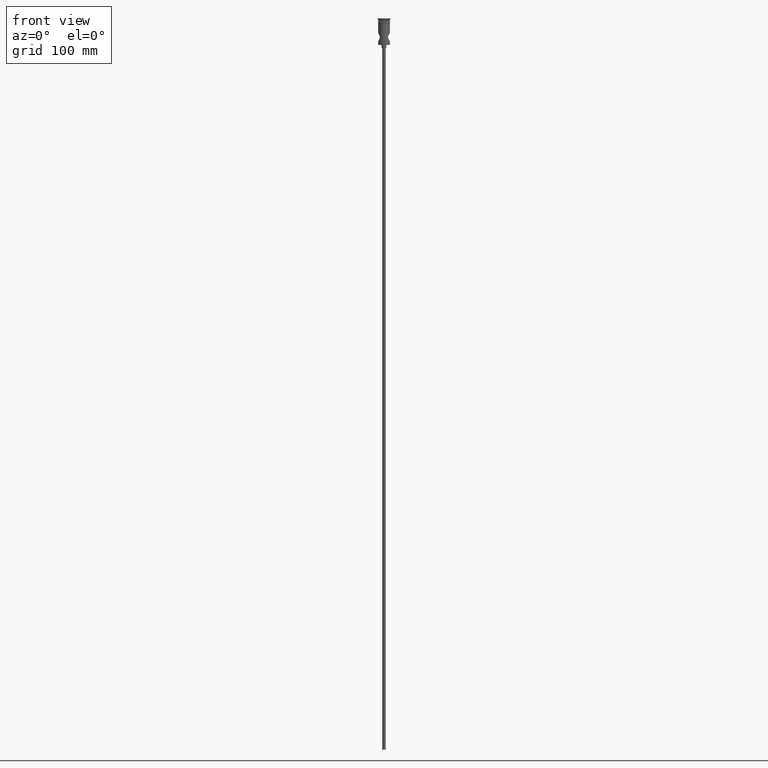
[diagram: clean part render]
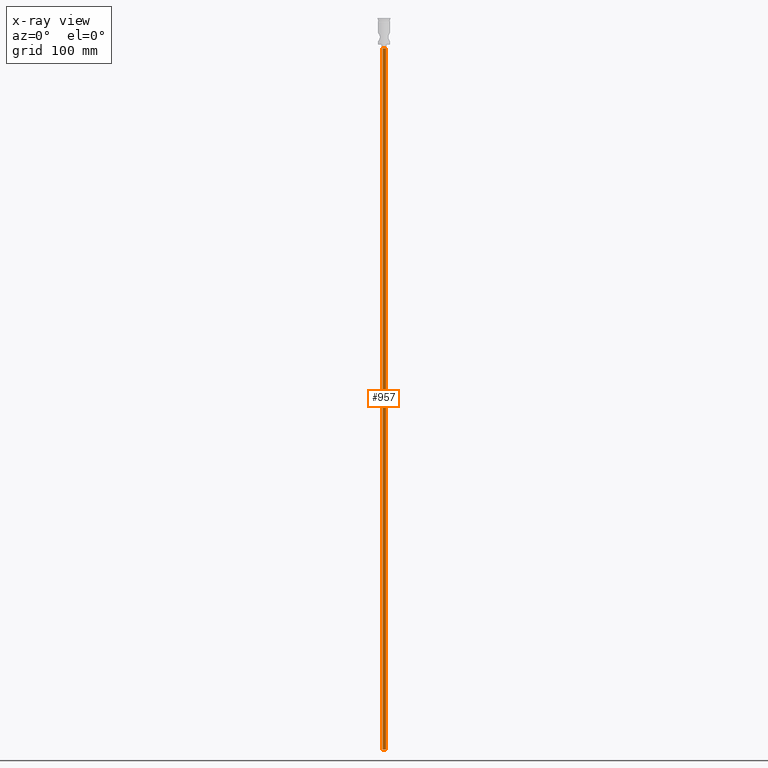
[diagram: x-ray — body ghosted, one internal face saturated and labeled with its STEP entity id]
A machine part, front view, then the same camera in x-ray: the body is ghosted and one INTERNAL B-rep face — a face not visible from any outside direction — is saturated and labeled: STEP entity #957.
In plain terms, the highlighted cylindrical surface (edge-blend (fillet) strip) has radius 1.5 mm, axis along (-0, -0, 1).
Its self-contained STEP definition (entity closure, byte-faithful):
#39 = DIRECTION ( 'NONE',  ( -0.000000000000000000, -0.000000000000000000, 1.000000000000000000 ) ) ;
#44 = EDGE_CURVE ( 'NONE', #409, #531, #180, .T. ) ;
#64 = EDGE_CURVE ( 'NONE', #853, #531, #799, .T. ) ;
#80 = LINE ( 'NONE', #1180, #1028 ) ;
#97 = EDGE_LOOP ( 'NONE', ( #611, #1345, #604, #1356 ) ) ;
#167 = DIRECTION ( 'NONE',  ( -0.000000000000000000, -0.000000000000000000, 1.000000000000000000 ) ) ;
#180 = CIRCLE ( 'NONE', #283, 1.500000000000000222 ) ;
#237 = CARTESIAN_POINT ( 'NONE',  ( 0.000000000000000000, 0.000000000000000000, -25.50000000000000000 ) ) ;
#255 = CARTESIAN_POINT ( 'NONE',  ( -1.500000000000000222, 1.836970198721030181E-16, -622.4999999999998863 ) ) ;
#283 = AXIS2_PLACEMENT_3D ( 'NONE', #237, #1350, #806 ) ;
#325 = VERTEX_POINT ( 'NONE', #255 ) ;
#404 = CIRCLE ( 'NONE', #622, 1.500000000000000222 ) ;
#409 = VERTEX_POINT ( 'NONE', #968 ) ;
#531 = VERTEX_POINT ( 'NONE', #537 ) ;
#537 = CARTESIAN_POINT ( 'NONE',  ( 1.500000000000000222, 0.000000000000000000, -25.50000000000000000 ) ) ;
#604 = ORIENTED_EDGE ( 'NONE', *, *, #44, .T. ) ;
#611 = ORIENTED_EDGE ( 'NONE', *, *, #1057, .F. ) ;
#622 = AXIS2_PLACEMENT_3D ( 'NONE', #1171, #1048, #907 ) ;
#654 = CARTESIAN_POINT ( 'NONE',  ( 0.000000000000000000, 0.000000000000000000, -622.4999999999998863 ) ) ;
#760 = VECTOR ( 'NONE', #39, 1000.000000000000000 ) ;
#799 = LINE ( 'NONE', #1041, #760 ) ;
#806 = DIRECTION ( 'NONE',  ( -1.000000000000000000, 0.000000000000000000, 0.000000000000000000 ) ) ;
#853 = VERTEX_POINT ( 'NONE', #1299 ) ;
#907 = DIRECTION ( 'NONE',  ( -1.000000000000000000, 0.000000000000000000, 0.000000000000000000 ) ) ;
#957 = ADVANCED_FACE ( 'NONE', ( #1238 ), #1330, .T. ) ;
#968 = CARTESIAN_POINT ( 'NONE',  ( -1.500000000000000222, 1.836970198721030181E-16, -25.50000000000000000 ) ) ;
#1028 = VECTOR ( 'NONE', #167, 1000.000000000000000 ) ;
#1041 = CARTESIAN_POINT ( 'NONE',  ( 1.500000000000000222, 0.000000000000000000, -622.4999999999998863 ) ) ;
#1048 = DIRECTION ( 'NONE',  ( 0.000000000000000000, 0.000000000000000000, -1.000000000000000000 ) ) ;
#1057 = EDGE_CURVE ( 'NONE', #325, #853, #404, .T. ) ;
#1134 = DIRECTION ( 'NONE',  ( 1.000000000000000000, 0.000000000000000000, 0.000000000000000000 ) ) ;
#1171 = CARTESIAN_POINT ( 'NONE',  ( 0.000000000000000000, 0.000000000000000000, -622.4999999999998863 ) ) ;
#1180 = CARTESIAN_POINT ( 'NONE',  ( -1.500000000000000222, 1.836970198721030181E-16, -622.4999999999998863 ) ) ;
#1229 = DIRECTION ( 'NONE',  ( -0.000000000000000000, -0.000000000000000000, 1.000000000000000000 ) ) ;
#1238 = FACE_OUTER_BOUND ( 'NONE', #97, .T. ) ;
#1299 = CARTESIAN_POINT ( 'NONE',  ( 1.500000000000000222, 0.000000000000000000, -622.4999999999998863 ) ) ;
#1311 = EDGE_CURVE ( 'NONE', #325, #409, #80, .T. ) ;
#1327 = AXIS2_PLACEMENT_3D ( 'NONE', #654, #1229, #1134 ) ;
#1330 = CYLINDRICAL_SURFACE ( 'NONE', #1327, 1.500000000000000222 ) ;
#1345 = ORIENTED_EDGE ( 'NONE', *, *, #1311, .T. ) ;
#1350 = DIRECTION ( 'NONE',  ( 0.000000000000000000, 0.000000000000000000, -1.000000000000000000 ) ) ;
#1356 = ORIENTED_EDGE ( 'NONE', *, *, #64, .F. ) ;